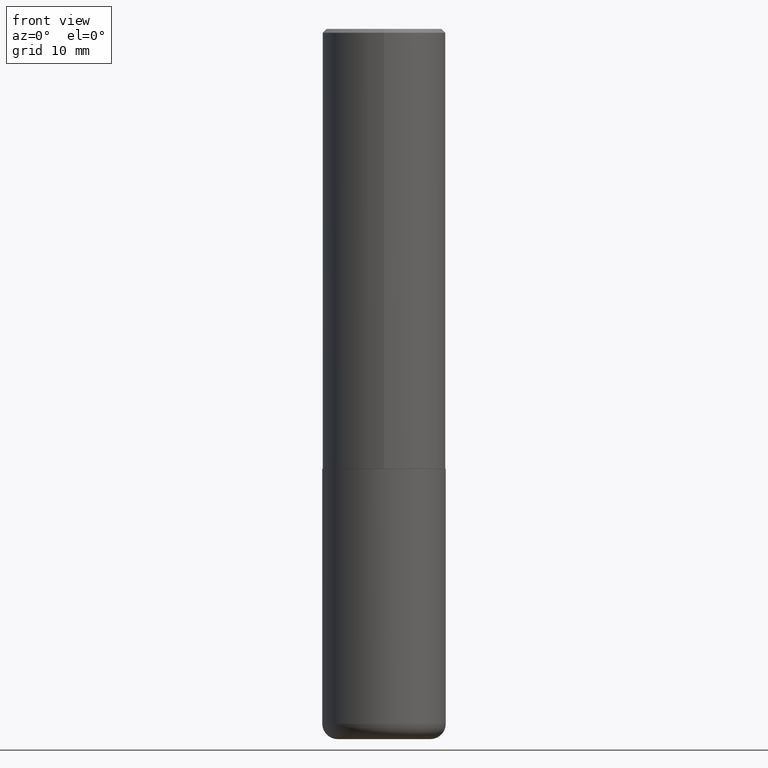
[diagram: clean part render]
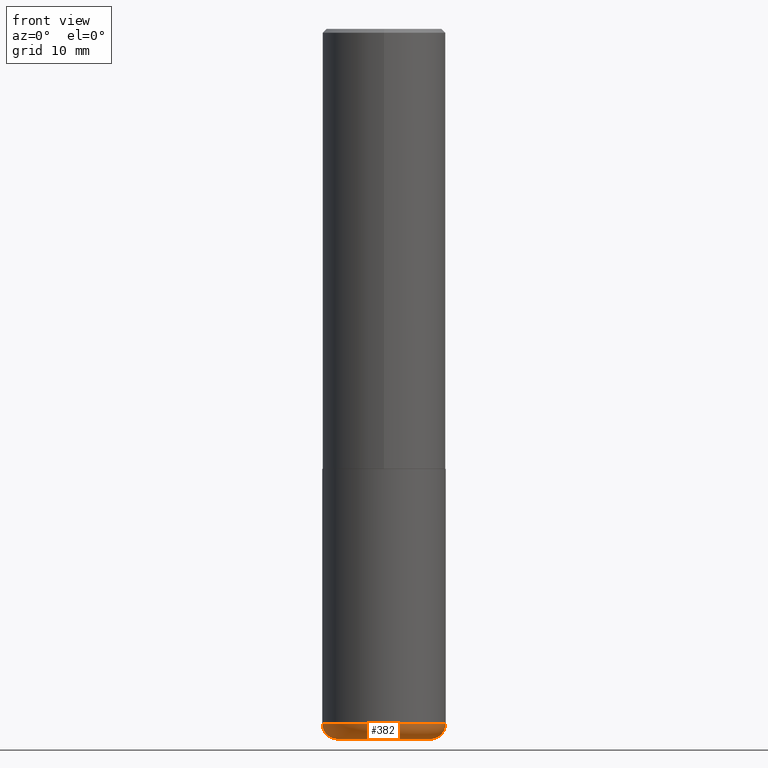
[diagram: same view with one face highlighted and labeled with its STEP entity id]
A machine part, front view. The second image highlights one B-rep face of the part: STEP entity #382.
In plain terms, the highlighted toroidal blend (fillet) surface has major radius 6.0008 mm and minor (blend) radius 1.999 mm.
Its self-contained STEP definition (entity closure, byte-faithful):
#10 = CARTESIAN_POINT ( 'NONE',  ( 0.2362500000000000155, -1.429587034189325203E-14, -3.621999999999999886 ) ) ;
#37 = DIRECTION ( 'NONE',  ( 7.105427357601001859E-15, 1.000000000000000000, -3.491481338843145583E-15 ) ) ;
#46 = ORIENTED_EDGE ( 'NONE', *, *, #278, .F. ) ;
#69 = DIRECTION ( 'NONE',  ( -2.445468806185136597E-29, 3.491481338843145583E-15, 1.000000000000000000 ) ) ;
#72 = DIRECTION ( 'NONE',  ( 1.000000000000000000, -6.982962677686269866E-15, 0.000000000000000000 ) ) ;
#77 = CARTESIAN_POINT ( 'NONE',  ( 8.857488016002564476E-29, -1.264614540928987199E-14, -3.621999999999999886 ) ) ;
#81 = ORIENTED_EDGE ( 'NONE', *, *, #375, .T. ) ;
#82 = CARTESIAN_POINT ( 'NONE',  ( 0.2362500000000000155, -1.402109076052629711E-14, -3.543299999999999894 ) ) ;
#83 = DIRECTION ( 'NONE',  ( 1.000000000000000000, -6.982962677686265133E-15, 4.883557194083112340E-29 ) ) ;
#93 = CIRCLE ( 'NONE', #347, 0.2362500000000000155 ) ;
#100 = CARTESIAN_POINT ( 'NONE',  ( -0.2362500000000000155, -1.055049983885156031E-14, -3.621999999999999886 ) ) ;
#101 = DIRECTION ( 'NONE',  ( -1.000000000000000000, 7.105427357600997914E-15, 0.000000000000000000 ) ) ;
#105 = CIRCLE ( 'NONE', #406, 0.07869999999999993667 ) ;
#119 = TOROIDAL_SURFACE ( 'NONE', #385, 0.2362500000000000155, 0.07869999999999995055 ) ;
#132 = CARTESIAN_POINT ( 'NONE',  ( -0.2362500000000000155, -1.069270861468967988E-14, -3.543299999999999894 ) ) ;
#148 = CARTESIAN_POINT ( 'NONE',  ( 0.3149500000000000077, -1.457064992326020852E-14, -3.543299999999999894 ) ) ;
#150 = VERTEX_POINT ( 'NONE', #246 ) ;
#162 = ORIENTED_EDGE ( 'NONE', *, *, #211, .F. ) ;
#167 = CIRCLE ( 'NONE', #311, 0.3149500000000000077 ) ;
#172 = VERTEX_POINT ( 'NONE', #148 ) ;
#181 = DIRECTION ( 'NONE',  ( 1.000000000000000000, -6.982962677686275388E-15, 0.000000000000000000 ) ) ;
#183 = ORIENTED_EDGE ( 'NONE', *, *, #318, .T. ) ;
#184 = FACE_OUTER_BOUND ( 'NONE', #339, .T. ) ;
#211 = EDGE_CURVE ( 'NONE', #150, #172, #167, .T. ) ;
#234 = CIRCLE ( 'NONE', #348, 0.07869999999999993667 ) ;
#246 = CARTESIAN_POINT ( 'NONE',  ( -0.3149500000000000077, -1.013351148164647951E-14, -3.543299999999999894 ) ) ;
#278 = EDGE_CURVE ( 'NONE', #340, #150, #105, .T. ) ;
#310 = CARTESIAN_POINT ( 'NONE',  ( 8.665029620955794069E-29, -1.237136582792291707E-14, -3.543299999999999894 ) ) ;
#311 = AXIS2_PLACEMENT_3D ( 'NONE', #321, #69, #325 ) ;
#318 = EDGE_CURVE ( 'NONE', #340, #324, #93, .T. ) ;
#321 = CARTESIAN_POINT ( 'NONE',  ( 8.665029620955794069E-29, -1.237136582792291707E-14, -3.543299999999999894 ) ) ;
#324 = VERTEX_POINT ( 'NONE', #10 ) ;
#325 = DIRECTION ( 'NONE',  ( 1.000000000000000000, -6.982962677686269866E-15, 0.000000000000000000 ) ) ;
#339 = EDGE_LOOP ( 'NONE', ( #46, #183, #81, #162 ) ) ;
#340 = VERTEX_POINT ( 'NONE', #100 ) ;
#346 = DIRECTION ( 'NONE',  ( -6.982962677686266711E-15, -1.000000000000000000, 3.491481338843145583E-15 ) ) ;
#347 = AXIS2_PLACEMENT_3D ( 'NONE', #77, #359, #72 ) ;
#348 = AXIS2_PLACEMENT_3D ( 'NONE', #82, #346, #181 ) ;
#359 = DIRECTION ( 'NONE',  ( -2.445468806185136597E-29, 3.491481338843145583E-15, 1.000000000000000000 ) ) ;
#375 = EDGE_CURVE ( 'NONE', #324, #172, #234, .T. ) ;
#382 = ADVANCED_FACE ( 'NONE', ( #184 ), #119, .T. ) ;
#385 = AXIS2_PLACEMENT_3D ( 'NONE', #310, #412, #83 ) ;
#406 = AXIS2_PLACEMENT_3D ( 'NONE', #132, #37, #101 ) ;
#412 = DIRECTION ( 'NONE',  ( -2.445468806185136597E-29, 3.491481338843145583E-15, 1.000000000000000000 ) ) ;